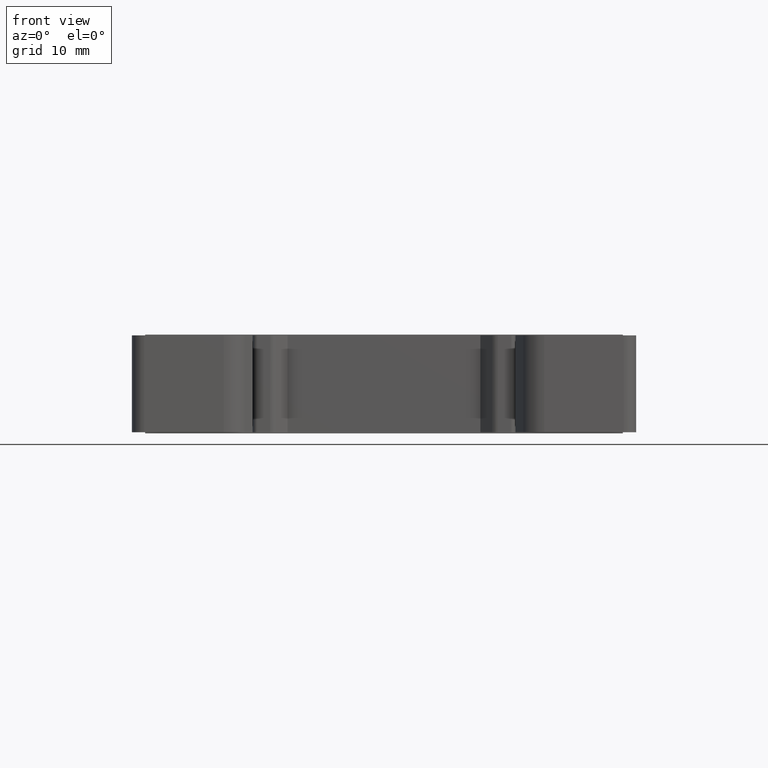
[diagram: clean part render]
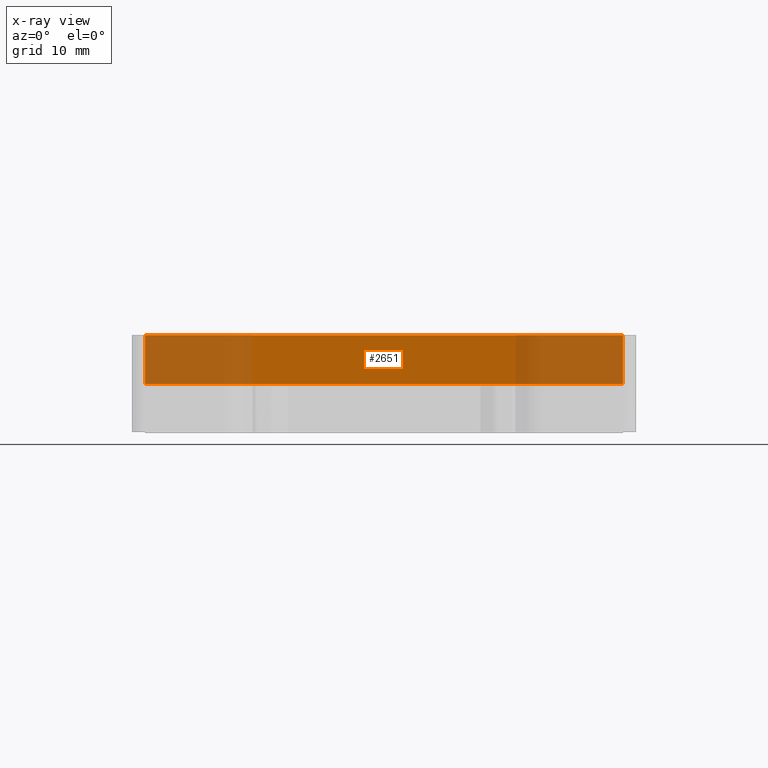
[diagram: x-ray — body ghosted, one internal face saturated and labeled with its STEP entity id]
A machine part, front view, then the same camera in x-ray: the body is ghosted and one INTERNAL B-rep face — a face not visible from any outside direction — is saturated and labeled: STEP entity #2651.
In plain terms, the highlighted planar face has unit normal (0, 1, 0).
Its self-contained STEP definition (entity closure, byte-faithful):
#2095 = EDGE_CURVE ( 'NONE', #5439, #5513, #8159, .T. ) ;
#2097 = EDGE_CURVE ( 'NONE', #5516, #5477, #9884, .T. ) ;
#2114 = EDGE_CURVE ( 'NONE', #5439, #5477, #8278, .T. ) ;
#2155 = EDGE_CURVE ( 'NONE', #5516, #5513, #8429, .T. ) ;
#2651 = ADVANCED_FACE ( 'NONE', ( #11162 ), #11144, .T. ) ;
#3246 = EDGE_LOOP ( 'NONE', ( #5584, #5570, #5563, #5586 ) ) ;
#3787 = VECTOR ( 'NONE', #8425, 1000.000000000000000 ) ;
#3790 = VECTOR ( 'NONE', #8263, 1000.000000000000000 ) ;
#3832 = VECTOR ( 'NONE', #8230, 1000.000000000000000 ) ;
#4176 = AXIS2_PLACEMENT_3D ( 'NONE', #11159, #11160, #11136 ) ;
#5439 = VERTEX_POINT ( 'NONE', #12080 ) ;
#5477 = VERTEX_POINT ( 'NONE', #12110 ) ;
#5513 = VERTEX_POINT ( 'NONE', #12120 ) ;
#5516 = VERTEX_POINT ( 'NONE', #12095 ) ;
#5563 = ORIENTED_EDGE ( 'NONE', *, *, #2097, .T. ) ;
#5570 = ORIENTED_EDGE ( 'NONE', *, *, #2155, .F. ) ;
#5584 = ORIENTED_EDGE ( 'NONE', *, *, #2095, .T. ) ;
#5586 = ORIENTED_EDGE ( 'NONE', *, *, #2114, .F. ) ;
#8159 = LINE ( 'NONE', #8163, #3832 ) ;
#8163 = CARTESIAN_POINT ( 'NONE',  ( 1741.589541215375000, 769.9497915645499700, 6.000000000000000000 ) ) ;
#8177 = CARTESIAN_POINT ( 'NONE',  ( 1722.195793020979600, 769.9497915645503100, 11.90000000000000000 ) ) ;
#8193 = CARTESIAN_POINT ( 'NONE',  ( 1741.528477748373500, 769.9497915645499700, 11.90000000000000000 ) ) ;
#8216 = CARTESIAN_POINT ( 'NONE',  ( 1780.193847203160900, 769.9497915645507600, 11.90000000000000000 ) ) ;
#8230 = DIRECTION ( 'NONE',  ( -1.000000000000000000, 0.0000000000000000000, -6.982962677686269900E-015 ) ) ;
#8241 = CARTESIAN_POINT ( 'NONE',  ( 1760.861162475766600, 769.9497915645499700, 11.90000000000000000 ) ) ;
#8263 = DIRECTION ( 'NONE',  ( -0.0000000000000000000, -0.0000000000000000000, 1.000000000000000000 ) ) ;
#8278 = LINE ( 'NONE', #8301, #3790 ) ;
#8301 = CARTESIAN_POINT ( 'NONE',  ( 1780.193847203162200, 769.9497915645520200, 11.90000000000000000 ) ) ;
#8425 = DIRECTION ( 'NONE',  ( 0.0000000000000000000, 0.0000000000000000000, -1.000000000000000000 ) ) ;
#8429 = LINE ( 'NONE', #8430, #3787 ) ;
#8430 = CARTESIAN_POINT ( 'NONE',  ( 1722.195793020979200, 769.9497915645507600, 11.90000000000000000 ) ) ;
#9884 = B_SPLINE_CURVE_WITH_KNOTS ( 'NONE', 3,
 ( #8177, #8193, #8241, #8216 ),
 .UNSPECIFIED., .F., .F.,
 ( 4, 4 ),
 ( 0.0000000000000000000, 1.000000000000000000 ),
 .UNSPECIFIED. ) ;
#11136 = DIRECTION ( 'NONE',  ( 0.0000000000000000000, -0.0000000000000000000, 1.000000000000000000 ) ) ;
#11144 = PLANE ( 'NONE',  #4176 ) ;
#11159 = CARTESIAN_POINT ( 'NONE',  ( 1701.967527464065100, 769.9497915645499700, 11.90000000000000000 ) ) ;
#11160 = DIRECTION ( 'NONE',  ( 0.0000000000000000000, 1.000000000000000000, 0.0000000000000000000 ) ) ;
#11162 = FACE_OUTER_BOUND ( 'NONE', #3246, .T. ) ;
#12080 = CARTESIAN_POINT ( 'NONE',  ( 1780.193847203161800, 769.9497915645515600, 6.000000000000279800 ) ) ;
#12095 = CARTESIAN_POINT ( 'NONE',  ( 1722.195793020979600, 769.9497915645503100, 11.90000000000000000 ) ) ;
#12110 = CARTESIAN_POINT ( 'NONE',  ( 1780.193847203160900, 769.9497915645507600, 11.90000000000000000 ) ) ;
#12120 = CARTESIAN_POINT ( 'NONE',  ( 1722.195793020979600, 769.9497915645503100, 5.999999999999932500 ) ) ;